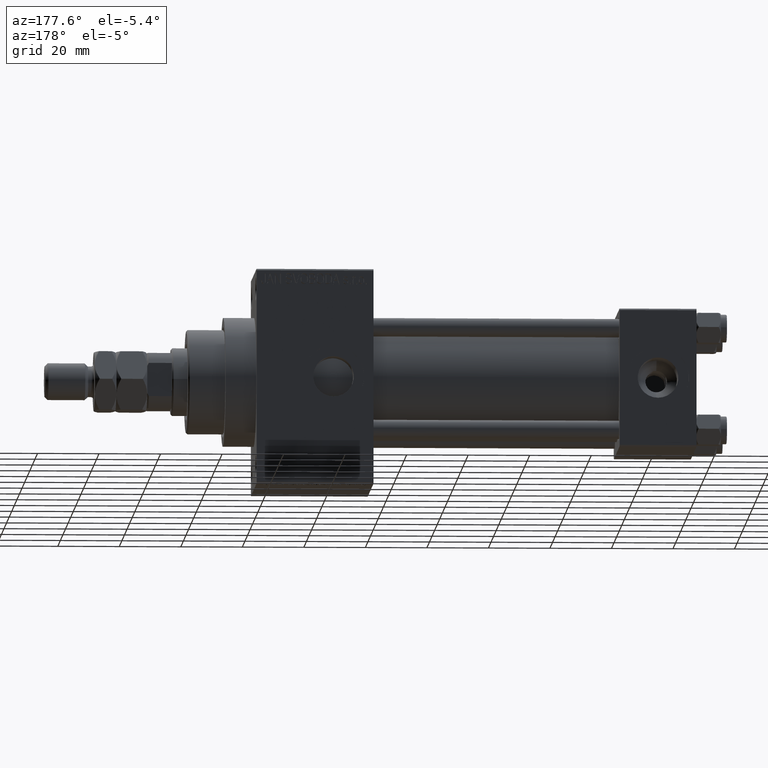
[diagram: clean part render]
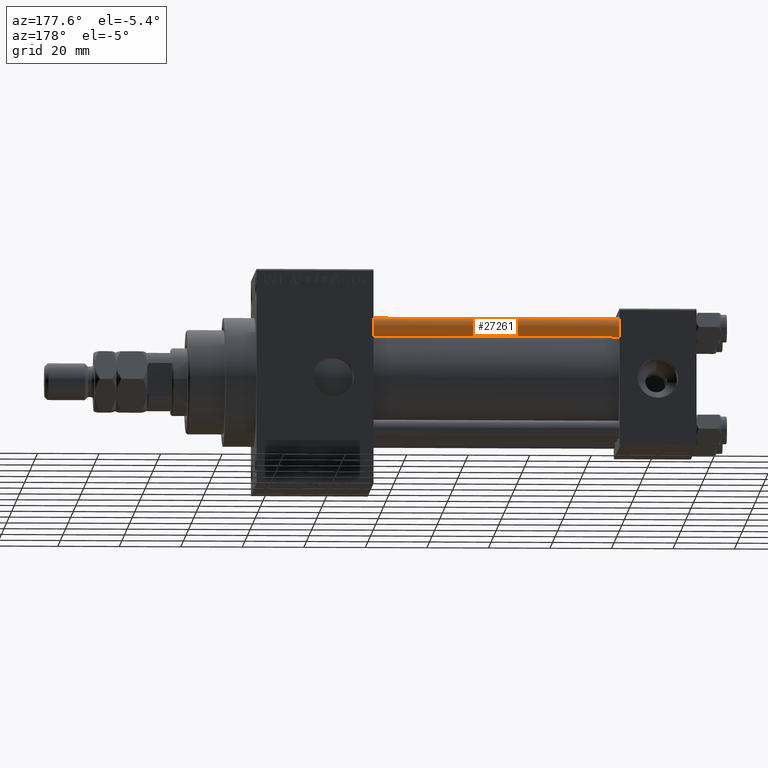
[diagram: same view with one face highlighted and labeled with its STEP entity id]
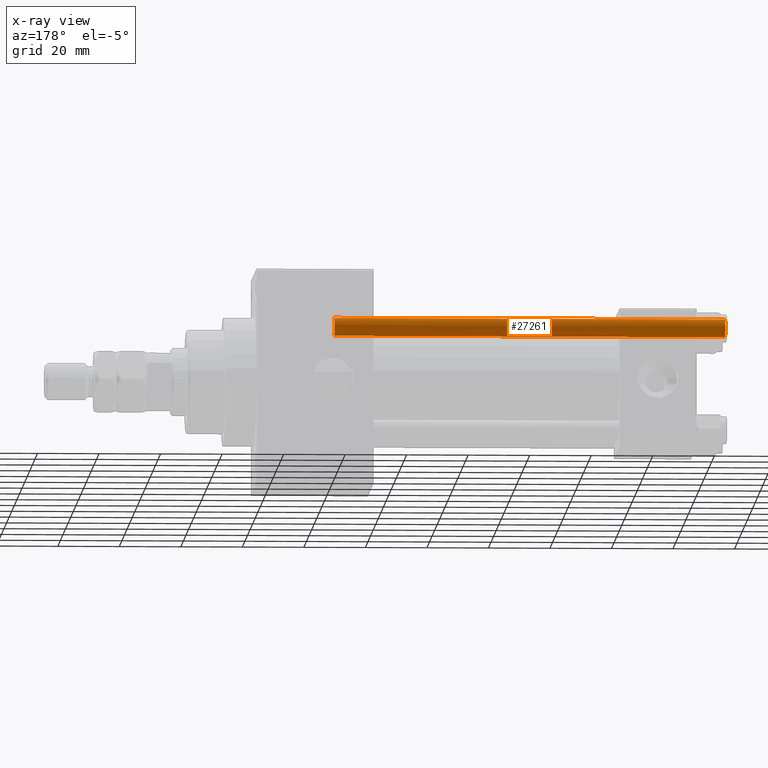
[diagram: x-ray of the same camera — body ghosted, the highlighted face saturated]
A machine part, auxiliary view. The second image highlights one B-rep face of the part: STEP entity #27261.
The next image is the same camera in x-ray: the body ghosted, the highlighted face saturated — about 0% of this face is hidden behind the body in this view.
In plain terms, the highlighted cylindrical surface (edge-blend (fillet) strip) has radius 3 mm, axis along (-1, -0, 0).
Its self-contained STEP definition (entity closure, byte-faithful):
#348 = DIRECTION ( 'NONE',  ( -1.000000000000000000, 0.000000000000000000, 0.000000000000000000 ) ) ;
#1449 = AXIS2_PLACEMENT_3D ( 'NONE', #13439, #24199, #32909 ) ;
#2801 = VERTEX_POINT ( 'NONE', #19748 ) ;
#4594 = EDGE_CURVE ( 'NONE', #27471, #33630, #43403, .T. ) ;
#4715 = EDGE_CURVE ( 'NONE', #31698, #27471, #19158, .T. ) ;
#5485 = CARTESIAN_POINT ( 'NONE',  ( 0.000000000000000000, 0.000000000000000000, 128.0000000000000000 ) ) ;
#12320 = ORIENTED_EDGE ( 'NONE', *, *, #37513, .F. ) ;
#13439 = CARTESIAN_POINT ( 'NONE',  ( 0.000000000000000000, 0.000000000000000000, 127.4999999999999716 ) ) ;
#14163 = AXIS2_PLACEMENT_3D ( 'NONE', #5485, #24176, #348 ) ;
#14318 = DIRECTION ( 'NONE',  ( -0.000000000000000000, -0.000000000000000000, 1.000000000000000000 ) ) ;
#18665 = DIRECTION ( 'NONE',  ( 1.000000000000000000, 0.000000000000000000, 0.000000000000000000 ) ) ;
#19158 = LINE ( 'NONE', #49688, #22912 ) ;
#19748 = CARTESIAN_POINT ( 'NONE',  ( -3.000000000000000444, 0.000000000000000000, 127.4999999999999716 ) ) ;
#20559 = DIRECTION ( 'NONE',  ( -0.000000000000000000, -0.000000000000000000, -1.000000000000000000 ) ) ;
#20816 = CARTESIAN_POINT ( 'NONE',  ( -3.000000000000000444, 0.000000000000000000, 128.0000000000000000 ) ) ;
#22603 = VECTOR ( 'NONE', #20559, 1000.000000000000000 ) ;
#22912 = VECTOR ( 'NONE', #23503, 1000.000000000000000 ) ;
#23503 = DIRECTION ( 'NONE',  ( -0.000000000000000000, -0.000000000000000000, -1.000000000000000000 ) ) ;
#24176 = DIRECTION ( 'NONE',  ( -0.000000000000000000, -0.000000000000000000, -1.000000000000000000 ) ) ;
#24199 = DIRECTION ( 'NONE',  ( 0.000000000000000000, 0.000000000000000000, -1.000000000000000000 ) ) ;
#24951 = FACE_OUTER_BOUND ( 'NONE', #32932, .T. ) ;
#25008 = ORIENTED_EDGE ( 'NONE', *, *, #4594, .T. ) ;
#25839 = CARTESIAN_POINT ( 'NONE',  ( 0.000000000000000000, 0.000000000000000000, 0.5000000000000281997 ) ) ;
#27261 = ADVANCED_FACE ( 'NONE', ( #24951 ), #40605, .T. ) ;
#27471 = VERTEX_POINT ( 'NONE', #32317 ) ;
#30371 = CARTESIAN_POINT ( 'NONE',  ( -3.000000000000000444, 0.000000000000000000, 0.5000000000000281997 ) ) ;
#31698 = VERTEX_POINT ( 'NONE', #34897 ) ;
#32317 = CARTESIAN_POINT ( 'NONE',  ( 3.000000000000000444, 3.673940397442060361E-16, 0.5000000000000281997 ) ) ;
#32909 = DIRECTION ( 'NONE',  ( 1.000000000000000000, 0.000000000000000000, 0.000000000000000000 ) ) ;
#32932 = EDGE_LOOP ( 'NONE', ( #45223, #50193, #25008, #12320 ) ) ;
#33630 = VERTEX_POINT ( 'NONE', #30371 ) ;
#34897 = CARTESIAN_POINT ( 'NONE',  ( 3.000000000000000444, 3.673940397442060361E-16, 127.4999999999999716 ) ) ;
#35207 = AXIS2_PLACEMENT_3D ( 'NONE', #25839, #14318, #18665 ) ;
#37513 = EDGE_CURVE ( 'NONE', #2801, #33630, #47228, .T. ) ;
#39103 = CIRCLE ( 'NONE', #1449, 3.000000000000000444 ) ;
#40605 = CYLINDRICAL_SURFACE ( 'NONE', #14163, 3.000000000000000444 ) ;
#41751 = EDGE_CURVE ( 'NONE', #2801, #31698, #39103, .T. ) ;
#43403 = CIRCLE ( 'NONE', #35207, 3.000000000000000444 ) ;
#45223 = ORIENTED_EDGE ( 'NONE', *, *, #41751, .T. ) ;
#47228 = LINE ( 'NONE', #20816, #22603 ) ;
#49688 = CARTESIAN_POINT ( 'NONE',  ( 3.000000000000000444, 3.673940397442060361E-16, 128.0000000000000000 ) ) ;
#50193 = ORIENTED_EDGE ( 'NONE', *, *, #4715, .T. ) ;